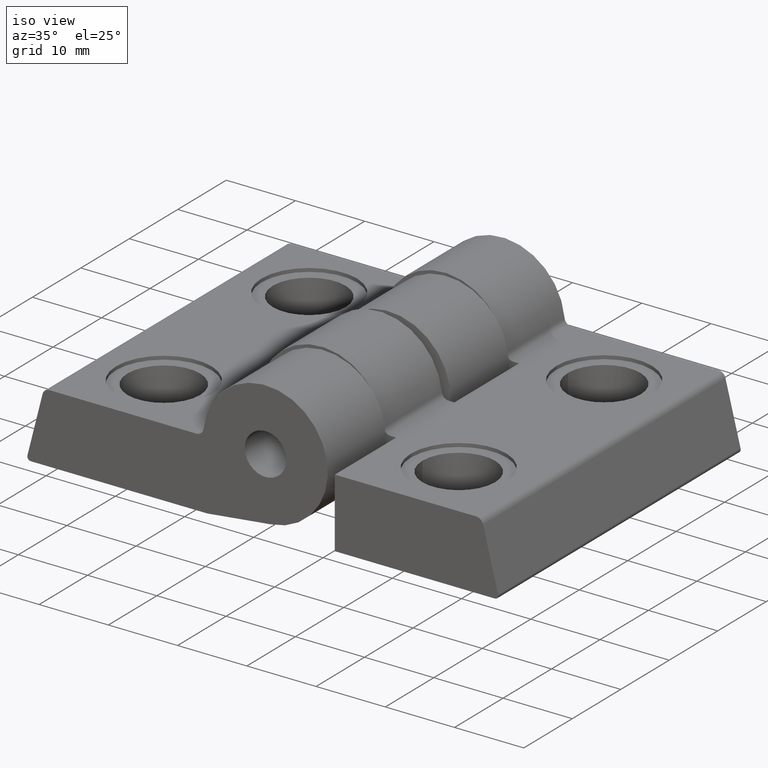
[diagram: clean part render]
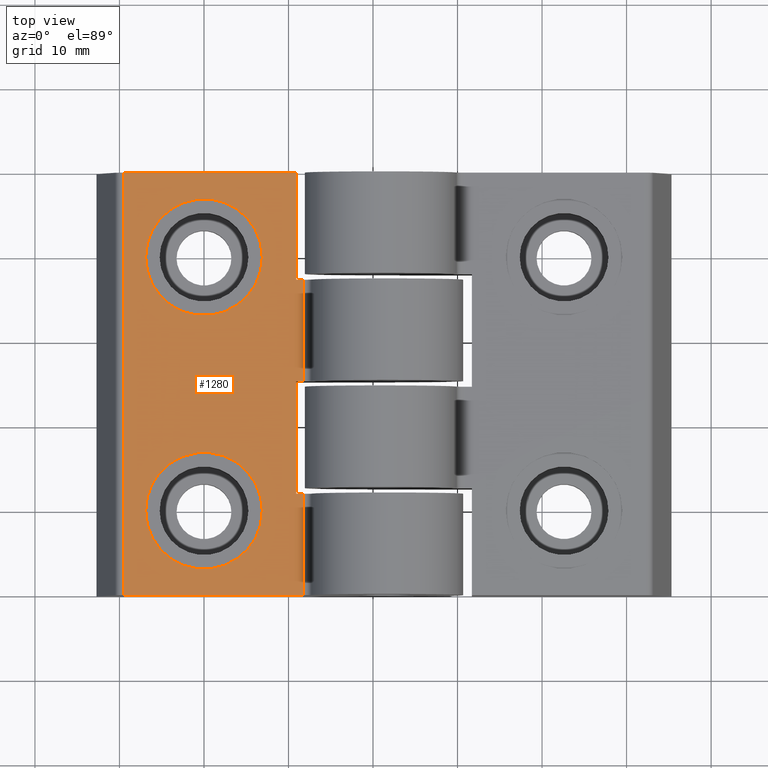
[diagram: tour spotlight — one face highlighted and labeled with its STEP entity id]
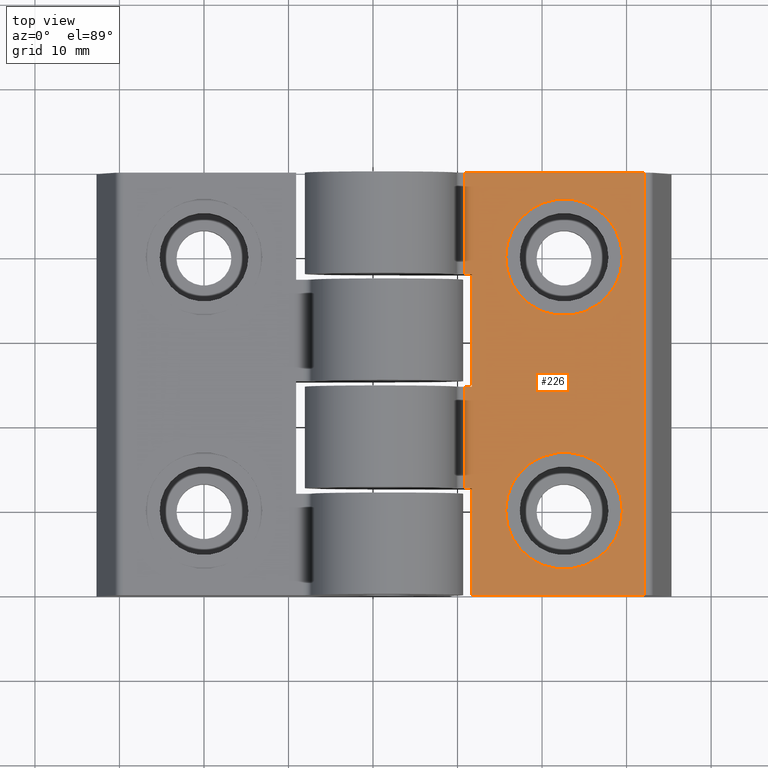
[diagram: tour spotlight — one face highlighted and labeled with its STEP entity id]
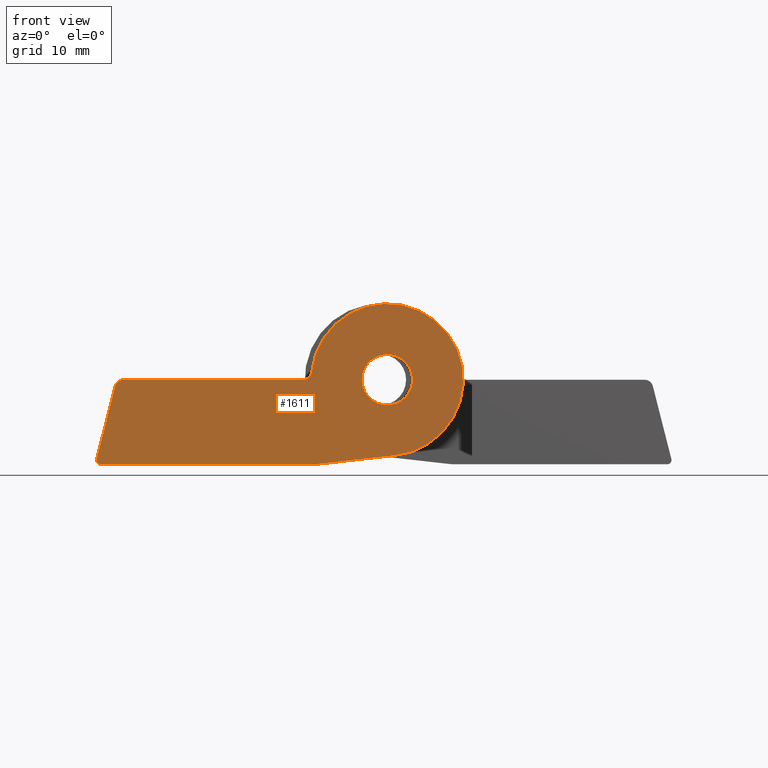
[diagram: tour spotlight — one face highlighted and labeled with its STEP entity id]
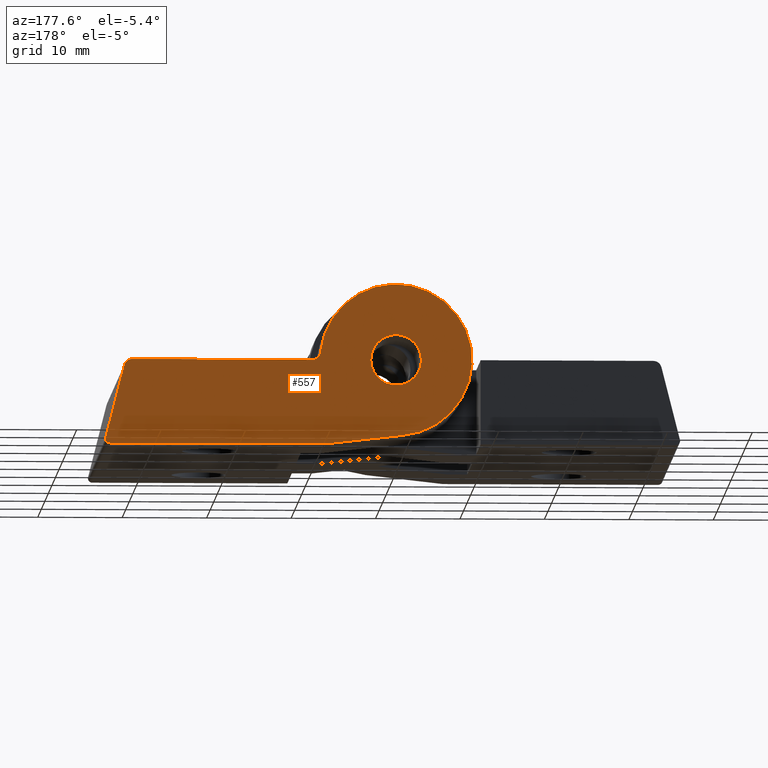
[diagram: tour spotlight — one face highlighted and labeled with its STEP entity id]
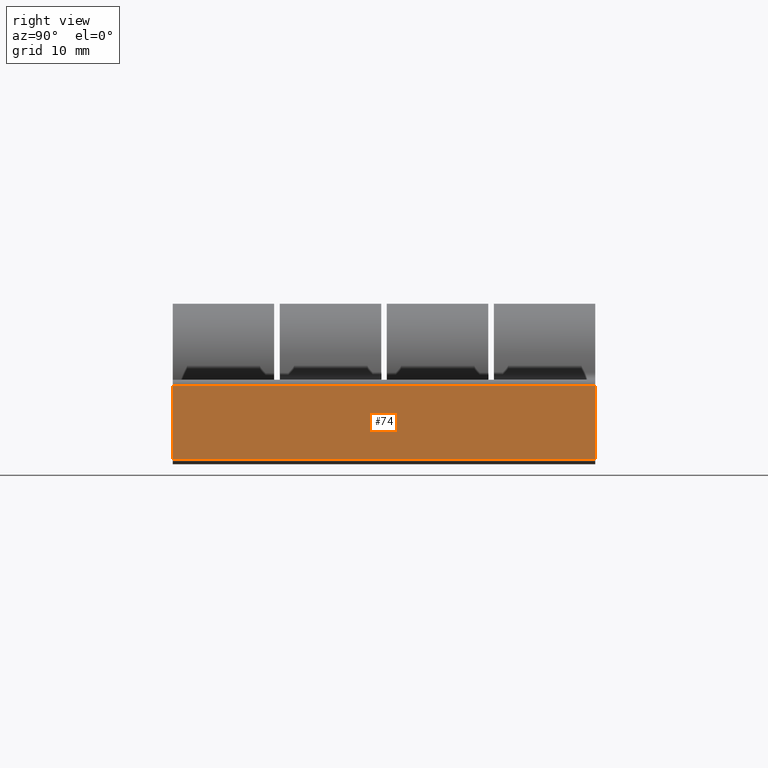
[diagram: tour spotlight — one face highlighted and labeled with its STEP entity id]
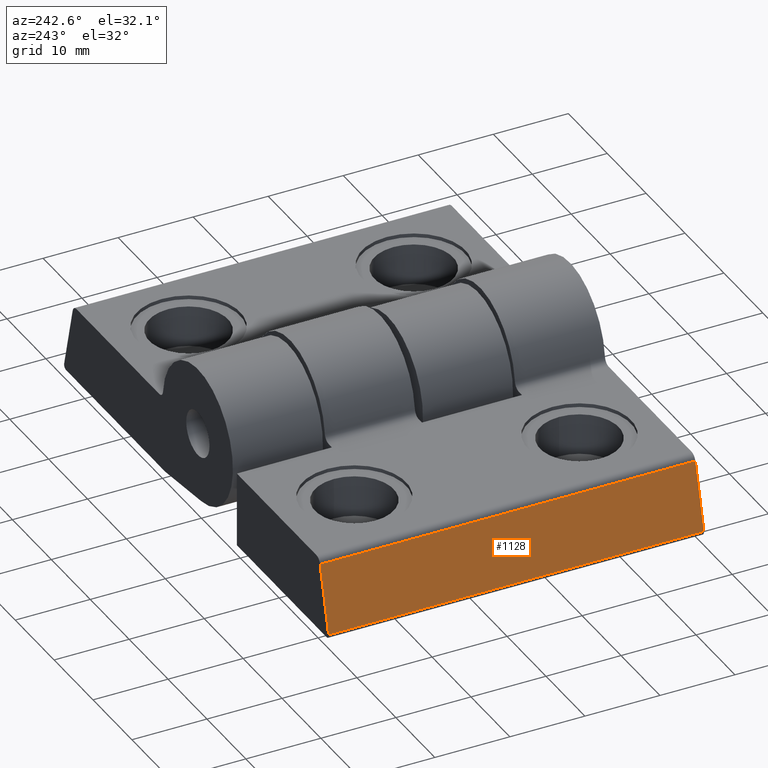
[diagram: tour spotlight — one face highlighted and labeled with its STEP entity id]
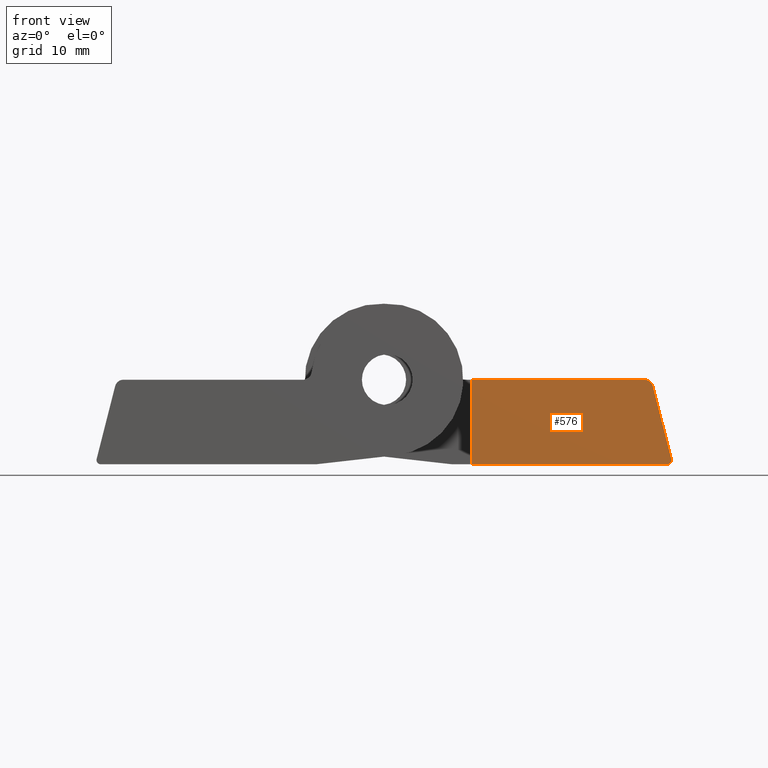
[diagram: tour spotlight — one face highlighted and labeled with its STEP entity id]
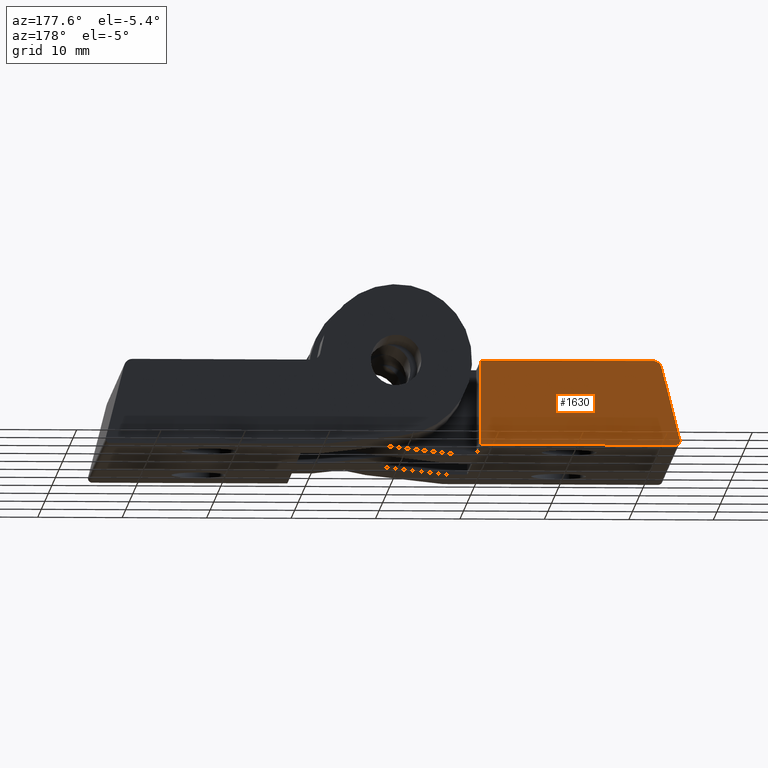
[diagram: tour spotlight — one face highlighted and labeled with its STEP entity id]
A machine part: a face-by-face anatomy tour. The part has 60 B-rep faces; the first image is the clean iso view, then the 8 largest visible faces are spotlighted one at a time (largest first), each with its STEP entity span.

Face 1 — top view, entity #1280. In plain terms, the highlighted planar face has unit normal (0, 0, 1).
Definition (entity closure, byte-faithful):
#1134=CARTESIAN_POINT('',(-9.539471402018450,-9.999997779959813,9.999997779960040));
#1135=VERTEX_POINT('',#1134);
#1143=CARTESIAN_POINT('',(-9.539471402018450,39.999991119840189,9.999997779960038));
#1144=VERTEX_POINT('',#1143);
#1145=CARTESIAN_POINT('',(-9.539471402018450,-9.999997779959813,9.999997779960040));
#1146=DIRECTION('',(0.0,1.0,0.0));
#1147=VECTOR('',#1146,49.999988899800002);
#1148=LINE('',#1145,#1147);
#1149=EDGE_CURVE('',#1135,#1144,#1148,.T.);
#1162=CARTESIAN_POINT('',(-9.539471402018450,-9.999997779959813,9.999997779960040));
#1163=DIRECTION('',(0.0,0.0,1.0));
#1164=DIRECTION('',(1.0,0.0,0.0));
#1165=AXIS2_PLACEMENT_3D('',#1162,#1163,#1164);
#1166=PLANE('',#1165);
#1167=CARTESIAN_POINT('',(11.733019789082107,-9.999997779959813,9.999997779961149));
#1168=VERTEX_POINT('',#1167);
#1169=CARTESIAN_POINT('',(-9.539471402018450,-9.999997779959811,9.999997779960040));
#1170=DIRECTION('',(1.0,0.0,0.0));
#1171=VECTOR('',#1170,21.272491191100556);
#1172=LINE('',#1169,#1171);
#1173=EDGE_CURVE('',#1135,#1168,#1172,.T.);
#1174=ORIENTED_EDGE('',*,*,#1173,.T.);
#1175=CARTESIAN_POINT('',(11.733019789082107,1.999999555991963,9.999997779961149));
#1176=VERTEX_POINT('',#1175);
#1177=CARTESIAN_POINT('',(11.733019789082107,-9.999997779959813,9.999997779961149));
#1178=DIRECTION('',(0.0,1.0,0.0));
#1179=VECTOR('',#1178,11.999997335951775);
#1180=LINE('',#1177,#1179);
#1181=EDGE_CURVE('',#1168,#1176,#1180,.T.);
#1182=ORIENTED_EDGE('',*,*,#1181,.T.);
#1183=CARTESIAN_POINT('',(10.899996943358786,1.999999555991963,9.999997779960040));
#1184=VERTEX_POINT('',#1183);
#1185=CARTESIAN_POINT('',(11.733019789082107,1.999999555991963,9.999997779961149));
#1186=DIRECTION('',(-1.0,0.0,-1.330632E-012));
#1187=VECTOR('',#1186,0.833022845723320);
#1188=LINE('',#1185,#1187);
#1189=EDGE_CURVE('',#1176,#1184,#1188,.T.);
#1190=ORIENTED_EDGE('',*,*,#1189,.T.);
#1191=CARTESIAN_POINT('',(10.899996943358786,15.331985886236993,9.999997779960038));
#1192=VERTEX_POINT('',#1191);
#1193=CARTESIAN_POINT('',(10.899996943358786,15.331985886236993,9.999997779960038));
#1194=DIRECTION('',(0.0,-1.0,0.0));
#1195=VECTOR('',#1194,13.331986330245030);
#1196=LINE('',#1193,#1195);
#1197=EDGE_CURVE('',#1192,#1184,#1196,.T.);
#1198=ORIENTED_EDGE('',*,*,#1197,.F.);
#1199=CARTESIAN_POINT('',(11.733019789082107,15.331985886236993,9.999997779961147));
#1200=VERTEX_POINT('',#1199);
#1201=CARTESIAN_POINT('',(11.733019789082107,15.331985886236993,9.999997779961147));
#1202=DIRECTION('',(-1.0,0.0,-1.330632E-012));
#1203=VECTOR('',#1202,0.833022845723320);
#1204=LINE('',#1201,#1203);
#1205=EDGE_CURVE('',#1200,#1192,#1204,.T.);
#1206=ORIENTED_EDGE('',*,*,#1205,.F.);
#1207=CARTESIAN_POINT('',(11.733019789082107,27.331983222189216,9.999997779961147));
#1208=VERTEX_POINT('',#1207);
#1209=CARTESIAN_POINT('',(11.733019789082110,15.331985886236993,9.999997779961147));
#1210=DIRECTION('',(0.0,1.0,0.0));
#1211=VECTOR('',#1210,11.999997335952223);
#1212=LINE('',#1209,#1211);
#1213=EDGE_CURVE('',#1200,#1208,#1212,.T.);
#1214=ORIENTED_EDGE('',*,*,#1213,.T.);
#1215=CARTESIAN_POINT('',(10.899993133359715,27.331983222189216,9.999997779960038));
#1216=VERTEX_POINT('',#1215);
#1217=CARTESIAN_POINT('',(11.733019789082107,27.331983222189216,9.999997779961147));
#1218=DIRECTION('',(-1.0,0.0,-1.330626E-012));
#1219=VECTOR('',#1218,0.833026655722392);
#1220=LINE('',#1217,#1219);
#1221=EDGE_CURVE('',#1208,#1216,#1220,.T.);
#1222=ORIENTED_EDGE('',*,*,#1221,.T.);
#1223=CARTESIAN_POINT('',(10.899993133359715,39.999991119840189,9.999997779960038));
#1224=VERTEX_POINT('',#1223);
#1225=CARTESIAN_POINT('',(10.899993133359715,39.999991119840189,9.999997779960038));
#1226=DIRECTION('',(0.0,-1.0,0.0));
#1227=VECTOR('',#1226,12.668007897650973);
#1228=LINE('',#1225,#1227);
#1229=EDGE_CURVE('',#1224,#1216,#1228,.T.);
#1230=ORIENTED_EDGE('',*,*,#1229,.F.);
#1231=CARTESIAN_POINT('',(-9.539471402018450,39.999991119840189,9.999997779960038));
#1232=DIRECTION('',(1.0,0.0,0.0));
#1233=VECTOR('',#1232,20.439464535378164);
#1234=LINE('',#1231,#1233);
#1235=EDGE_CURVE('',#1144,#1224,#1234,.T.);
#1236=ORIENTED_EDGE('',*,*,#1235,.F.);
#1237=ORIENTED_EDGE('',*,*,#1149,.F.);
#1238=EDGE_LOOP('',(#1174,#1182,#1190,#1198,#1206,#1214,#1222,#1230,#1236,#1237));
#1239=FACE_OUTER_BOUND('',#1238,.T.);
#1240=CARTESIAN_POINT('',(-6.900000719706867,29.999985709881912,9.999997779960038));
#1241=VERTEX_POINT('',#1240);
#1242=CARTESIAN_POINT('',(6.900000719706867,29.999985709881912,9.999997779960038));
#1243=VERTEX_POINT('',#1242);
#1244=CARTESIAN_POINT('',(0.0,29.999985709881912,9.999997779960038));
#1245=DIRECTION('',(0.0,6.123234E-017,1.0));
#1246=DIRECTION('',(1.0,-1.224647E-016,7.498799E-033));
#1247=AXIS2_PLACEMENT_3D('',#1244,#1245,#1246);
#1248=CIRCLE('',#1247,6.900000719706867);
#1249=EDGE_CURVE('',#1241,#1243,#1248,.T.);
#1250=ORIENTED_EDGE('',*,*,#1249,.F.);
#1251=CARTESIAN_POINT('',(0.0,29.999985709881912,9.999997779960038));
#1252=DIRECTION('',(0.0,6.123234E-017,1.0));
#1253=DIRECTION('',(1.0,-1.224647E-016,7.498799E-033));
#1254=AXIS2_PLACEMENT_3D('',#1251,#1252,#1253);
#1255=CIRCLE('',#1254,6.900000719706867);
#1256=EDGE_CURVE('',#1243,#1241,#1255,.T.);
#1257=ORIENTED_EDGE('',*,*,#1256,.F.);
#1258=EDGE_LOOP('',(#1250,#1257));
#1259=FACE_BOUND('',#1258,.T.);
#1260=CARTESIAN_POINT('',(-6.900000719706867,1.457330E-015,9.999997779960040));
#1261=VERTEX_POINT('',#1260);
#1262=CARTESIAN_POINT('',(6.900000719706867,6.123233E-016,9.999997779960040));
#1263=VERTEX_POINT('',#1262);
#1264=CARTESIAN_POINT('',(0.0,6.123233E-016,9.999997779960040));
#1265=DIRECTION('',(0.0,6.123234E-017,1.0));
#1266=DIRECTION('',(1.0,-1.224647E-016,7.498799E-033));
#1267=AXIS2_PLACEMENT_3D('',#1264,#1265,#1266);
#1268=CIRCLE('',#1267,6.900000719706867);
#1269=EDGE_CURVE('',#1261,#1263,#1268,.T.);
#1270=ORIENTED_EDGE('',*,*,#1269,.F.);
#1271=CARTESIAN_POINT('',(0.0,6.123233E-016,9.999997779960040));
#1272=DIRECTION('',(0.0,6.123234E-017,1.0));
#1273=DIRECTION('',(1.0,-1.224647E-016,7.498799E-033));
#1274=AXIS2_PLACEMENT_3D('',#1271,#1272,#1273);
#1275=CIRCLE('',#1274,6.900000719706867);
#1276=EDGE_CURVE('',#1263,#1261,#1275,.T.);
#1277=ORIENTED_EDGE('',*,*,#1276,.F.);
#1278=EDGE_LOOP('',(#1270,#1277));
#1279=FACE_BOUND('',#1278,.T.);
#1280=ADVANCED_FACE('',(#1239,#1259,#1279),#1166,.T.);

Face 2 — top view, entity #226. In plain terms, the highlighted planar face has unit normal (0, 0, 1).
Definition (entity closure, byte-faithful):
#80=CARTESIAN_POINT('',(52.139459464648468,39.999994929838977,9.999997779960038));
#81=VERTEX_POINT('',#80);
#89=CARTESIAN_POINT('',(52.139459464648468,-9.999993969961025,9.999997779960040));
#90=VERTEX_POINT('',#89);
#91=CARTESIAN_POINT('',(52.139459464648468,39.999994929838977,9.999997779960038));
#92=DIRECTION('',(0.0,-1.0,0.0));
#93=VECTOR('',#92,49.999988899800002);
#94=LINE('',#91,#93);
#95=EDGE_CURVE('',#81,#90,#94,.T.);
#108=CARTESIAN_POINT('',(52.139459464648468,39.999994929838977,9.999997779960038));
#109=DIRECTION('',(0.0,0.0,1.0));
#110=DIRECTION('',(-1.0,0.0,0.0));
#111=AXIS2_PLACEMENT_3D('',#108,#109,#110);
#112=PLANE('',#111);
#113=CARTESIAN_POINT('',(30.866968273547911,39.999994929838977,9.999997779961147));
#114=VERTEX_POINT('',#113);
#115=CARTESIAN_POINT('',(52.139459464648468,39.999994929838977,9.999997779960038));
#116=DIRECTION('',(-1.0,0.0,0.0));
#117=VECTOR('',#116,21.272491191100556);
#118=LINE('',#115,#117);
#119=EDGE_CURVE('',#81,#114,#118,.T.);
#120=ORIENTED_EDGE('',*,*,#119,.T.);
#121=CARTESIAN_POINT('',(30.866968273547911,27.999997593887201,9.999997779961147));
#122=VERTEX_POINT('',#121);
#123=CARTESIAN_POINT('',(30.866968273547911,39.999994929838977,9.999997779961147));
#124=DIRECTION('',(0.0,-1.0,0.0));
#125=VECTOR('',#124,11.999997335951775);
#126=LINE('',#123,#125);
#127=EDGE_CURVE('',#114,#122,#126,.T.);
#128=ORIENTED_EDGE('',*,*,#127,.T.);
#129=CARTESIAN_POINT('',(31.699991119271232,27.999997593887201,9.999997779960038));
#130=VERTEX_POINT('',#129);
#131=CARTESIAN_POINT('',(30.866968273547911,27.999997593887201,9.999997779961147));
#132=DIRECTION('',(1.0,0.0,-1.330632E-012));
#133=VECTOR('',#132,0.833022845723320);
#134=LINE('',#131,#133);
#135=EDGE_CURVE('',#122,#130,#134,.T.);
#136=ORIENTED_EDGE('',*,*,#135,.T.);
#137=CARTESIAN_POINT('',(31.699991119271232,14.668011263642171,9.999997779960038));
#138=VERTEX_POINT('',#137);
#139=CARTESIAN_POINT('',(31.699991119271232,14.668011263642171,9.999997779960038));
#140=DIRECTION('',(0.0,1.0,0.0));
#141=VECTOR('',#140,13.331986330245030);
#142=LINE('',#139,#141);
#143=EDGE_CURVE('',#138,#130,#142,.T.);
#144=ORIENTED_EDGE('',*,*,#143,.F.);
#145=CARTESIAN_POINT('',(30.866968273547911,14.668011263642171,9.999997779961147));
#146=VERTEX_POINT('',#145);
#147=CARTESIAN_POINT('',(30.866968273547911,14.668011263642171,9.999997779961147));
#148=DIRECTION('',(1.0,0.0,-1.330632E-012));
#149=VECTOR('',#148,0.833022845723320);
#150=LINE('',#147,#149);
#151=EDGE_CURVE('',#146,#138,#150,.T.);
#152=ORIENTED_EDGE('',*,*,#151,.F.);
#153=CARTESIAN_POINT('',(30.866968273547911,2.668013927689949,9.999997779961149));
#154=VERTEX_POINT('',#153);
#155=CARTESIAN_POINT('',(30.866968273547911,14.668011263642171,9.999997779961149));
#156=DIRECTION('',(0.0,-1.0,0.0));
#157=VECTOR('',#156,11.999997335952223);
#158=LINE('',#155,#157);
#159=EDGE_CURVE('',#146,#154,#158,.T.);
#160=ORIENTED_EDGE('',*,*,#159,.T.);
#161=CARTESIAN_POINT('',(31.699994929270304,2.668013927689949,9.999997779960040));
#162=VERTEX_POINT('',#161);
#163=CARTESIAN_POINT('',(30.866968273547911,2.668013927689949,9.999997779961149));
#164=DIRECTION('',(1.0,0.0,-1.330626E-012));
#165=VECTOR('',#164,0.833026655722392);
#166=LINE('',#163,#165);
#167=EDGE_CURVE('',#154,#162,#166,.T.);
#168=ORIENTED_EDGE('',*,*,#167,.T.);
#169=CARTESIAN_POINT('',(31.699994929270304,-9.999993969961025,9.999997779960040));
#170=VERTEX_POINT('',#169);
#171=CARTESIAN_POINT('',(31.699994929270304,-9.999993969961025,9.999997779960040));
#172=DIRECTION('',(0.0,1.0,0.0));
#173=VECTOR('',#172,12.668007897650973);
#174=LINE('',#171,#173);
#175=EDGE_CURVE('',#170,#162,#174,.T.);
#176=ORIENTED_EDGE('',*,*,#175,.F.);
#177=CARTESIAN_POINT('',(52.139459464648468,-9.999993969961025,9.999997779960040));
#178=DIRECTION('',(-1.0,0.0,0.0));
#179=VECTOR('',#178,20.439464535378164);
#180=LINE('',#177,#179);
#181=EDGE_CURVE('',#90,#170,#180,.T.);
#182=ORIENTED_EDGE('',*,*,#181,.F.);
#183=ORIENTED_EDGE('',*,*,#95,.F.);
#184=EDGE_LOOP('',(#120,#128,#136,#144,#152,#160,#168,#176,#182,#183));
#185=FACE_OUTER_BOUND('',#184,.T.);
#186=CARTESIAN_POINT('',(49.499988782336885,0.000011439997252,9.999997779960040));
#187=VERTEX_POINT('',#186);
#188=CARTESIAN_POINT('',(35.699987342923151,0.000011439997252,9.999997779960040));
#189=VERTEX_POINT('',#188);
#190=CARTESIAN_POINT('',(42.599988062630018,0.000011439997252,9.999997779960040));
#191=DIRECTION('',(0.0,6.123234E-017,1.0));
#192=DIRECTION('',(-1.0,0.0,0.0));
#193=AXIS2_PLACEMENT_3D('',#190,#191,#192);
#194=CIRCLE('',#193,6.900000719706867);
#195=EDGE_CURVE('',#187,#189,#194,.T.);
#196=ORIENTED_EDGE('',*,*,#195,.F.);
#197=CARTESIAN_POINT('',(42.599988062630018,0.000011439997252,9.999997779960040));
#198=DIRECTION('',(0.0,6.123234E-017,1.0));
#199=DIRECTION('',(-1.0,0.0,0.0));
#200=AXIS2_PLACEMENT_3D('',#197,#198,#199);
#201=CIRCLE('',#200,6.900000719706867);
#202=EDGE_CURVE('',#189,#187,#201,.T.);
#203=ORIENTED_EDGE('',*,*,#202,.F.);
#204=EDGE_LOOP('',(#196,#203));
#205=FACE_BOUND('',#204,.T.);
#206=CARTESIAN_POINT('',(49.499988782336885,29.999997149879164,9.999997779960038));
#207=VERTEX_POINT('',#206);
#208=CARTESIAN_POINT('',(35.699987342923151,29.999997149879164,9.999997779960038));
#209=VERTEX_POINT('',#208);
#210=CARTESIAN_POINT('',(42.599988062630018,29.999997149879164,9.999997779960038));
#211=DIRECTION('',(0.0,6.123234E-017,1.0));
#212=DIRECTION('',(-1.0,0.0,0.0));
#213=AXIS2_PLACEMENT_3D('',#210,#211,#212);
#214=CIRCLE('',#213,6.900000719706867);
#215=EDGE_CURVE('',#207,#209,#214,.T.);
#216=ORIENTED_EDGE('',*,*,#215,.F.);
#217=CARTESIAN_POINT('',(42.599988062630018,29.999997149879164,9.999997779960038));
#218=DIRECTION('',(0.0,6.123234E-017,1.0));
#219=DIRECTION('',(-1.0,0.0,0.0));
#220=AXIS2_PLACEMENT_3D('',#217,#218,#219);
#221=CIRCLE('',#220,6.900000719706867);
#222=EDGE_CURVE('',#209,#207,#221,.T.);
#223=ORIENTED_EDGE('',*,*,#222,.F.);
#224=EDGE_LOOP('',(#216,#223));
#225=FACE_BOUND('',#224,.T.);
#226=ADVANCED_FACE('',(#185,#205,#225),#112,.T.);

Face 3 — front view, entity #1611. In plain terms, the highlighted planar face has unit normal (0, 1, 0).
Definition (entity closure, byte-faithful):
#1061=CARTESIAN_POINT('',(-12.215784981284827,-9.999997779959813,6.123233E-016));
#1062=VERTEX_POINT('',#1061);
#1063=CARTESIAN_POINT('',(-12.700377417766589,-9.999997779959813,0.623167246070836));
#1064=VERTEX_POINT('',#1063);
#1065=CARTESIAN_POINT('',(-12.215784981284829,-9.999997779959816,0.500000000000000));
#1066=DIRECTION('',(1.224647E-016,1.000000000000000,-6.123234E-017));
#1067=DIRECTION('',(-0.969184872963516,1.337746E-016,0.246334492141669));
#1068=AXIS2_PLACEMENT_3D('',#1065,#1066,#1067);
#1069=CIRCLE('',#1068,0.500000000000000);
#1070=EDGE_CURVE('',#1062,#1064,#1069,.T.);
#1103=CARTESIAN_POINT('',(-10.508656274981973,-9.999997779959813,9.246332272101711));
#1104=VERTEX_POINT('',#1103);
#1105=CARTESIAN_POINT('',(-12.700377417766584,-9.999997779959813,0.623167246070837));
#1106=DIRECTION('',(0.246334492141673,0.0,0.969184872963515));
#1107=VECTOR('',#1106,8.897337614921174);
#1108=LINE('',#1105,#1107);
#1109=EDGE_CURVE('',#1064,#1104,#1108,.T.);
#1134=CARTESIAN_POINT('',(-9.539471402018450,-9.999997779959813,9.999997779960040));
#1135=VERTEX_POINT('',#1134);
#1136=CARTESIAN_POINT('',(-9.539471402018451,-9.999997779959816,8.999997779960040));
#1137=DIRECTION('',(1.224647E-016,1.000000000000000,-6.123234E-017));
#1138=DIRECTION('',(-0.969184872963516,1.337746E-016,0.246334492141669));
#1139=AXIS2_PLACEMENT_3D('',#1136,#1137,#1138);
#1140=CIRCLE('',#1139,1.0);
#1141=EDGE_CURVE('',#1104,#1135,#1140,.T.);
#1167=CARTESIAN_POINT('',(11.733019789082107,-9.999997779959813,9.999997779961149));
#1168=VERTEX_POINT('',#1167);
#1169=CARTESIAN_POINT('',(-9.539471402018450,-9.999997779959811,9.999997779960040));
#1170=DIRECTION('',(1.0,0.0,0.0));
#1171=VECTOR('',#1170,21.272491191100556);
#1172=LINE('',#1169,#1171);
#1173=EDGE_CURVE('',#1135,#1168,#1172,.T.);
#1286=CARTESIAN_POINT('',(12.728006982865679,-9.999997779959813,10.899997909476070));
#1287=VERTEX_POINT('',#1286);
#1288=CARTESIAN_POINT('',(11.733019789082109,-9.999997779959811,10.999997496566948));
#1289=DIRECTION('',(-1.224647E-016,-1.0,6.123234E-017));
#1290=DIRECTION('',(0.994987475757265,-1.279740E-016,-0.099999615430190));
#1291=AXIS2_PLACEMENT_3D('',#1288,#1289,#1290);
#1292=CIRCLE('',#1291,0.999999716605787);
#1293=EDGE_CURVE('',#1168,#1287,#1292,.T.);
#1352=CARTESIAN_POINT('',(22.408279035607819,-9.999997779959813,1.029273055670985));
#1353=VERTEX_POINT('',#1352);
#1354=CARTESIAN_POINT('',(21.682901271888966,-9.999997779959813,10.000000666356073));
#1355=DIRECTION('',(1.224647E-016,1.0,-6.123234E-017));
#1356=DIRECTION('',(-0.994987475757264,1.279740E-016,0.099999615430204));
#1357=AXIS2_PLACEMENT_3D('',#1354,#1355,#1356);
#1358=CIRCLE('',#1357,9.000007042508656);
#1359=EDGE_CURVE('',#1287,#1353,#1358,.T.);
#1418=CARTESIAN_POINT('',(13.282896659345568,-9.999997779959813,6.123233E-016));
#1419=VERTEX_POINT('',#1418);
#1420=CARTESIAN_POINT('',(22.408279035607819,-9.999997779959815,1.029273055670994));
#1421=DIRECTION('',(-0.993699004315188,1.934345E-016,-0.112081616793317));
#1422=VECTOR('',#1421,9.183245969488567);
#1423=LINE('',#1420,#1422);
#1424=EDGE_CURVE('',#1353,#1419,#1423,.T.);
#1527=CARTESIAN_POINT('',(13.282896659345568,-9.999997779959816,6.123233E-016));
#1528=DIRECTION('',(-1.0,0.0,0.0));
#1529=VECTOR('',#1528,25.498681640630394);
#1530=LINE('',#1527,#1529);
#1531=EDGE_CURVE('',#1419,#1062,#1530,.T.);
#1576=CARTESIAN_POINT('',(35.022782368820089,-9.999997779959813,-1.900005495813900));
#1577=DIRECTION('',(0.0,1.0,0.0));
#1578=DIRECTION('',(-1.0,0.0,0.0));
#1579=AXIS2_PLACEMENT_3D('',#1576,#1577,#1578);
#1580=PLANE('',#1579);
#1581=ORIENTED_EDGE('',*,*,#1531,.F.);
#1582=ORIENTED_EDGE('',*,*,#1424,.F.);
#1583=ORIENTED_EDGE('',*,*,#1359,.F.);
#1584=ORIENTED_EDGE('',*,*,#1293,.F.);
#1585=ORIENTED_EDGE('',*,*,#1173,.F.);
#1586=ORIENTED_EDGE('',*,*,#1141,.F.);
#1587=ORIENTED_EDGE('',*,*,#1109,.F.);
#1588=ORIENTED_EDGE('',*,*,#1070,.F.);
#1589=EDGE_LOOP('',(#1581,#1582,#1583,#1584,#1585,#1586,#1587,#1588));
#1590=FACE_OUTER_BOUND('',#1589,.T.);
#1591=CARTESIAN_POINT('',(18.682908795274216,-9.999997779959813,10.000000666356073));
#1592=VERTEX_POINT('',#1591);
#1593=CARTESIAN_POINT('',(24.682893748503716,-9.999997779959813,10.000000666356073));
#1594=VERTEX_POINT('',#1593);
#1595=CARTESIAN_POINT('',(21.682901271888966,-9.999997779959813,10.000000666356073));
#1596=DIRECTION('',(-1.224647E-016,-1.0,6.123234E-017));
#1597=DIRECTION('',(1.0,-1.224647E-016,7.498799E-033));
#1598=AXIS2_PLACEMENT_3D('',#1595,#1596,#1597);
#1599=CIRCLE('',#1598,2.999992476614749);
#1600=EDGE_CURVE('',#1592,#1594,#1599,.T.);
#1601=ORIENTED_EDGE('',*,*,#1600,.F.);
#1602=CARTESIAN_POINT('',(21.682901271888966,-9.999997779959813,10.000000666356073));
#1603=DIRECTION('',(-1.224647E-016,-1.0,6.123234E-017));
#1604=DIRECTION('',(1.0,-1.224647E-016,7.498799E-033));
#1605=AXIS2_PLACEMENT_3D('',#1602,#1603,#1604);
#1606=CIRCLE('',#1605,2.999992476614749);
#1607=EDGE_CURVE('',#1594,#1592,#1606,.T.);
#1608=ORIENTED_EDGE('',*,*,#1607,.F.);
#1609=EDGE_LOOP('',(#1601,#1608));
#1610=FACE_BOUND('',#1609,.T.);
#1611=ADVANCED_FACE('',(#1590,#1610),#1580,.F.);

Face 4 — auxiliary view, entity #557. In plain terms, the highlighted planar face has unit normal (0, -1, 0).
Definition (entity closure, byte-faithful):
#7=CARTESIAN_POINT('',(54.815773043914845,39.999994929838977,-2.449293E-015));
#8=VERTEX_POINT('',#7);
#9=CARTESIAN_POINT('',(55.300365480396607,39.999994929838977,0.623167246070833));
#10=VERTEX_POINT('',#9);
#11=CARTESIAN_POINT('',(54.815773043914852,39.999994929838991,0.499999999999996));
#12=DIRECTION('',(0.0,-1.000000000000000,6.123234E-017));
#13=DIRECTION('',(0.969184872963516,1.508364E-017,0.246334492141669));
#14=AXIS2_PLACEMENT_3D('',#11,#12,#13);
#15=CIRCLE('',#14,0.500000000000000);
#16=EDGE_CURVE('',#8,#10,#15,.T.);
#49=CARTESIAN_POINT('',(53.108644337611992,39.999994929838977,9.246332272101709));
#50=VERTEX_POINT('',#49);
#51=CARTESIAN_POINT('',(55.300365480396600,39.999994929838977,0.623167246070834));
#52=DIRECTION('',(-0.246334492141673,0.0,0.969184872963515));
#53=VECTOR('',#52,8.897337614921176);
#54=LINE('',#51,#53);
#55=EDGE_CURVE('',#10,#50,#54,.T.);
#80=CARTESIAN_POINT('',(52.139459464648468,39.999994929838977,9.999997779960038));
#81=VERTEX_POINT('',#80);
#82=CARTESIAN_POINT('',(52.139459464648475,39.999994929838991,8.999997779960038));
#83=DIRECTION('',(0.0,-1.000000000000000,6.123234E-017));
#84=DIRECTION('',(0.969184872963516,1.508364E-017,0.246334492141669));
#85=AXIS2_PLACEMENT_3D('',#82,#83,#84);
#86=CIRCLE('',#85,1.0);
#87=EDGE_CURVE('',#50,#81,#86,.T.);
#113=CARTESIAN_POINT('',(30.866968273547911,39.999994929838977,9.999997779961147));
#114=VERTEX_POINT('',#113);
#115=CARTESIAN_POINT('',(52.139459464648468,39.999994929838977,9.999997779960038));
#116=DIRECTION('',(-1.0,0.0,0.0));
#117=VECTOR('',#116,21.272491191100556);
#118=LINE('',#115,#117);
#119=EDGE_CURVE('',#81,#114,#118,.T.);
#232=CARTESIAN_POINT('',(29.871981079764339,39.999994929838977,10.899997909476069));
#233=VERTEX_POINT('',#232);
#234=CARTESIAN_POINT('',(30.866968273547915,39.999994929838977,10.999997496566946));
#235=DIRECTION('',(7.703720E-034,1.0,-6.123234E-017));
#236=DIRECTION('',(-0.994987475757265,-6.123210E-018,-0.099999615430190));
#237=AXIS2_PLACEMENT_3D('',#234,#235,#236);
#238=CIRCLE('',#237,0.999999716605787);
#239=EDGE_CURVE('',#114,#233,#238,.T.);
#298=CARTESIAN_POINT('',(20.191709027022199,39.999994929838977,1.029273055670982));
#299=VERTEX_POINT('',#298);
#300=CARTESIAN_POINT('',(20.917086790741052,39.999994929838977,10.000000666356073));
#301=DIRECTION('',(7.703720E-034,-1.0,6.123234E-017));
#302=DIRECTION('',(0.994987475757264,6.123210E-018,0.099999615430204));
#303=AXIS2_PLACEMENT_3D('',#300,#301,#302);
#304=CIRCLE('',#303,9.000007042508656);
#305=EDGE_CURVE('',#233,#299,#304,.T.);
#364=CARTESIAN_POINT('',(29.317091403284451,39.999994929838977,-2.449293E-015));
#365=VERTEX_POINT('',#364);
#366=CARTESIAN_POINT('',(20.191709027022199,39.999994929838977,1.029273055670991));
#367=DIRECTION('',(0.993699004315188,0.0,-0.112081616793317));
#368=VECTOR('',#367,9.183245969488567);
#369=LINE('',#366,#368);
#370=EDGE_CURVE('',#299,#365,#369,.T.);
#473=CARTESIAN_POINT('',(29.317091403284451,39.999994929838977,-2.449293E-015));
#474=DIRECTION('',(1.0,0.0,0.0));
#475=VECTOR('',#474,25.498681640630394);
#476=LINE('',#473,#475);
#477=EDGE_CURVE('',#365,#8,#476,.T.);
#522=CARTESIAN_POINT('',(7.577205693809930,39.999994929838977,-1.900005495813903));
#523=DIRECTION('',(0.0,-1.0,0.0));
#524=DIRECTION('',(1.0,0.0,0.0));
#525=AXIS2_PLACEMENT_3D('',#522,#523,#524);
#526=PLANE('',#525);
#527=ORIENTED_EDGE('',*,*,#477,.F.);
#528=ORIENTED_EDGE('',*,*,#370,.F.);
#529=ORIENTED_EDGE('',*,*,#305,.F.);
#530=ORIENTED_EDGE('',*,*,#239,.F.);
#531=ORIENTED_EDGE('',*,*,#119,.F.);
#532=ORIENTED_EDGE('',*,*,#87,.F.);
#533=ORIENTED_EDGE('',*,*,#55,.F.);
#534=ORIENTED_EDGE('',*,*,#16,.F.);
#535=EDGE_LOOP('',(#527,#528,#529,#530,#531,#532,#533,#534));
#536=FACE_OUTER_BOUND('',#535,.T.);
#537=CARTESIAN_POINT('',(23.917079267355803,39.999994929838977,10.000000666356071));
#538=VERTEX_POINT('',#537);
#539=CARTESIAN_POINT('',(17.917094314126302,39.999994929838977,10.000000666356071));
#540=VERTEX_POINT('',#539);
#541=CARTESIAN_POINT('',(20.917086790741052,39.999994929838977,10.000000666356071));
#542=DIRECTION('',(0.0,1.0,-6.123234E-017));
#543=DIRECTION('',(-1.0,0.0,0.0));
#544=AXIS2_PLACEMENT_3D('',#541,#542,#543);
#545=CIRCLE('',#544,2.999992476614749);
#546=EDGE_CURVE('',#538,#540,#545,.T.);
#547=ORIENTED_EDGE('',*,*,#546,.F.);
#548=CARTESIAN_POINT('',(20.917086790741052,39.999994929838977,10.000000666356071));
#549=DIRECTION('',(0.0,1.0,-6.123234E-017));
#550=DIRECTION('',(-1.0,0.0,0.0));
#551=AXIS2_PLACEMENT_3D('',#548,#549,#550);
#552=CIRCLE('',#551,2.999992476614749);
#553=EDGE_CURVE('',#540,#538,#552,.T.);
#554=ORIENTED_EDGE('',*,*,#553,.F.);
#555=EDGE_LOOP('',(#547,#554));
#556=FACE_BOUND('',#555,.T.);
#557=ADVANCED_FACE('',(#536,#556),#526,.F.);

Face 5 — right view, entity #74. In plain terms, the highlighted planar face has unit normal (0.9692, 0, 0.2463).
Definition (entity closure, byte-faithful):
#9=CARTESIAN_POINT('',(55.300365480396607,39.999994929838977,0.623167246070833));
#10=VERTEX_POINT('',#9);
#18=CARTESIAN_POINT('',(55.300365480396607,-9.999993969961025,0.623167246070836));
#19=VERTEX_POINT('',#18);
#20=CARTESIAN_POINT('',(55.300365480396607,39.999994929838977,0.623167246070833));
#21=DIRECTION('',(0.0,-1.0,0.0));
#22=VECTOR('',#21,49.999988899800002);
#23=LINE('',#20,#22);
#24=EDGE_CURVE('',#10,#19,#23,.T.);
#44=CARTESIAN_POINT('',(55.300365480396607,39.999994929838977,0.623167246070833));
#45=DIRECTION('',(0.969184872963515,1.508364E-017,0.246334492141673));
#46=DIRECTION('',(-0.246334492141673,5.934546E-017,0.969184872963515));
#47=AXIS2_PLACEMENT_3D('',#44,#45,#46);
#48=PLANE('',#47);
#49=CARTESIAN_POINT('',(53.108644337611992,39.999994929838977,9.246332272101709));
#50=VERTEX_POINT('',#49);
#51=CARTESIAN_POINT('',(55.300365480396600,39.999994929838977,0.623167246070834));
#52=DIRECTION('',(-0.246334492141673,0.0,0.969184872963515));
#53=VECTOR('',#52,8.897337614921176);
#54=LINE('',#51,#53);
#55=EDGE_CURVE('',#10,#50,#54,.T.);
#56=ORIENTED_EDGE('',*,*,#55,.T.);
#57=CARTESIAN_POINT('',(53.108644337611992,-9.999993969961025,9.246332272101711));
#58=VERTEX_POINT('',#57);
#59=CARTESIAN_POINT('',(53.108644337611992,39.999994929838977,9.246332272101709));
#60=DIRECTION('',(0.0,-1.0,0.0));
#61=VECTOR('',#60,49.999988899800002);
#62=LINE('',#59,#61);
#63=EDGE_CURVE('',#50,#58,#62,.T.);
#64=ORIENTED_EDGE('',*,*,#63,.T.);
#65=CARTESIAN_POINT('',(55.300365480396600,-9.999993969961025,0.623167246070837));
#66=DIRECTION('',(-0.246334492141673,0.0,0.969184872963515));
#67=VECTOR('',#66,8.897337614921174);
#68=LINE('',#65,#67);
#69=EDGE_CURVE('',#19,#58,#68,.T.);
#70=ORIENTED_EDGE('',*,*,#69,.F.);
#71=ORIENTED_EDGE('',*,*,#24,.F.);
#72=EDGE_LOOP('',(#56,#64,#70,#71));
#73=FACE_OUTER_BOUND('',#72,.T.);
#74=ADVANCED_FACE('',(#73),#48,.T.);

Face 6 — auxiliary view, entity #1128. In plain terms, the highlighted planar face has unit normal (-0.9692, 0, 0.2463).
Definition (entity closure, byte-faithful):
#1063=CARTESIAN_POINT('',(-12.700377417766589,-9.999997779959813,0.623167246070836));
#1064=VERTEX_POINT('',#1063);
#1072=CARTESIAN_POINT('',(-12.700377417766589,39.999991119840189,0.623167246070833));
#1073=VERTEX_POINT('',#1072);
#1074=CARTESIAN_POINT('',(-12.700377417766589,-9.999997779959813,0.623167246070836));
#1075=DIRECTION('',(0.0,1.0,0.0));
#1076=VECTOR('',#1075,49.999988899800002);
#1077=LINE('',#1074,#1076);
#1078=EDGE_CURVE('',#1064,#1073,#1077,.T.);
#1098=CARTESIAN_POINT('',(-12.700377417766589,-9.999997779959813,0.623167246070836));
#1099=DIRECTION('',(-0.969184872963515,1.337746E-016,0.246334492141673));
#1100=DIRECTION('',(0.246334492141673,2.917818E-017,0.969184872963515));
#1101=AXIS2_PLACEMENT_3D('',#1098,#1099,#1100);
#1102=PLANE('',#1101);
#1103=CARTESIAN_POINT('',(-10.508656274981973,-9.999997779959813,9.246332272101711));
#1104=VERTEX_POINT('',#1103);
#1105=CARTESIAN_POINT('',(-12.700377417766584,-9.999997779959813,0.623167246070837));
#1106=DIRECTION('',(0.246334492141673,0.0,0.969184872963515));
#1107=VECTOR('',#1106,8.897337614921174);
#1108=LINE('',#1105,#1107);
#1109=EDGE_CURVE('',#1064,#1104,#1108,.T.);
#1110=ORIENTED_EDGE('',*,*,#1109,.T.);
#1111=CARTESIAN_POINT('',(-10.508656274981973,39.999991119840189,9.246332272101709));
#1112=VERTEX_POINT('',#1111);
#1113=CARTESIAN_POINT('',(-10.508656274981973,-9.999997779959813,9.246332272101711));
#1114=DIRECTION('',(0.0,1.0,0.0));
#1115=VECTOR('',#1114,49.999988899800002);
#1116=LINE('',#1113,#1115);
#1117=EDGE_CURVE('',#1104,#1112,#1116,.T.);
#1118=ORIENTED_EDGE('',*,*,#1117,.T.);
#1119=CARTESIAN_POINT('',(-12.700377417766584,39.999991119840189,0.623167246070834));
#1120=DIRECTION('',(0.246334492141673,0.0,0.969184872963515));
#1121=VECTOR('',#1120,8.897337614921176);
#1122=LINE('',#1119,#1121);
#1123=EDGE_CURVE('',#1073,#1112,#1122,.T.);
#1124=ORIENTED_EDGE('',*,*,#1123,.F.);
#1125=ORIENTED_EDGE('',*,*,#1078,.F.);
#1126=EDGE_LOOP('',(#1110,#1118,#1124,#1125));
#1127=FACE_OUTER_BOUND('',#1126,.T.);
#1128=ADVANCED_FACE('',(#1127),#1102,.T.);

Face 7 — front view, entity #576. In plain terms, the highlighted planar face has unit normal (0, -1, 0).
Definition (entity closure, byte-faithful):
#18=CARTESIAN_POINT('',(55.300365480396607,-9.999993969961025,0.623167246070836));
#19=VERTEX_POINT('',#18);
#26=CARTESIAN_POINT('',(54.815773043914845,-9.999993969961025,6.123230E-016));
#27=VERTEX_POINT('',#26);
#28=CARTESIAN_POINT('',(54.815773043914845,-9.999993969961029,0.500000000000001));
#29=DIRECTION('',(0.0,-1.000000000000000,6.123234E-017));
#30=DIRECTION('',(0.969184872963516,1.508364E-017,0.246334492141669));
#31=AXIS2_PLACEMENT_3D('',#28,#29,#30);
#32=CIRCLE('',#31,0.500000000000000);
#33=EDGE_CURVE('',#27,#19,#32,.T.);
#57=CARTESIAN_POINT('',(53.108644337611992,-9.999993969961025,9.246332272101711));
#58=VERTEX_POINT('',#57);
#65=CARTESIAN_POINT('',(55.300365480396600,-9.999993969961025,0.623167246070837));
#66=DIRECTION('',(-0.246334492141673,0.0,0.969184872963515));
#67=VECTOR('',#66,8.897337614921174);
#68=LINE('',#65,#67);
#69=EDGE_CURVE('',#19,#58,#68,.T.);
#89=CARTESIAN_POINT('',(52.139459464648468,-9.999993969961025,9.999997779960040));
#90=VERTEX_POINT('',#89);
#97=CARTESIAN_POINT('',(52.139459464648475,-9.999993969961029,8.999997779960040));
#98=DIRECTION('',(0.0,-1.000000000000000,6.123234E-017));
#99=DIRECTION('',(0.969184872963516,1.508364E-017,0.246334492141669));
#100=AXIS2_PLACEMENT_3D('',#97,#98,#99);
#101=CIRCLE('',#100,1.0);
#102=EDGE_CURVE('',#58,#90,#101,.T.);
#169=CARTESIAN_POINT('',(31.699994929270304,-9.999993969961025,9.999997779960040));
#170=VERTEX_POINT('',#169);
#177=CARTESIAN_POINT('',(52.139459464648468,-9.999993969961025,9.999997779960040));
#178=DIRECTION('',(-1.0,0.0,0.0));
#179=VECTOR('',#178,20.439464535378164);
#180=LINE('',#177,#179);
#181=EDGE_CURVE('',#90,#170,#180,.T.);
#427=CARTESIAN_POINT('',(31.699994929270304,-9.999993969961025,6.123230E-016));
#428=VERTEX_POINT('',#427);
#429=CARTESIAN_POINT('',(31.699994929270304,-9.999993969961025,6.123230E-016));
#430=DIRECTION('',(1.0,0.0,0.0));
#431=VECTOR('',#430,23.115778114644542);
#432=LINE('',#429,#431);
#433=EDGE_CURVE('',#428,#27,#432,.T.);
#558=CARTESIAN_POINT('',(7.577205693809930,-9.999993969961025,-1.900005495813900));
#559=DIRECTION('',(0.0,-1.0,0.0));
#560=DIRECTION('',(1.0,0.0,0.0));
#561=AXIS2_PLACEMENT_3D('',#558,#559,#560);
#562=PLANE('',#561);
#563=ORIENTED_EDGE('',*,*,#33,.T.);
#564=ORIENTED_EDGE('',*,*,#69,.T.);
#565=ORIENTED_EDGE('',*,*,#102,.T.);
#566=ORIENTED_EDGE('',*,*,#181,.T.);
#567=CARTESIAN_POINT('',(31.699994929270304,-9.999993969961025,9.999997779960040));
#568=DIRECTION('',(0.0,0.0,-1.0));
#569=VECTOR('',#568,9.999997779960040);
#570=LINE('',#567,#569);
#571=EDGE_CURVE('',#170,#428,#570,.T.);
#572=ORIENTED_EDGE('',*,*,#571,.T.);
#573=ORIENTED_EDGE('',*,*,#433,.T.);
#574=EDGE_LOOP('',(#563,#564,#565,#566,#572,#573));
#575=FACE_OUTER_BOUND('',#574,.T.);
#576=ADVANCED_FACE('',(#575),#562,.T.);

Face 8 — auxiliary view, entity #1630. In plain terms, the highlighted planar face has unit normal (0, 1, 0).
Definition (entity closure, byte-faithful):
#1072=CARTESIAN_POINT('',(-12.700377417766589,39.999991119840189,0.623167246070833));
#1073=VERTEX_POINT('',#1072);
#1080=CARTESIAN_POINT('',(-12.215784981284827,39.999991119840189,-2.449293E-015));
#1081=VERTEX_POINT('',#1080);
#1082=CARTESIAN_POINT('',(-12.215784981284827,39.999991119840203,0.499999999999998));
#1083=DIRECTION('',(1.224647E-016,1.000000000000000,-6.123234E-017));
#1084=DIRECTION('',(-0.969184872963516,1.337746E-016,0.246334492141669));
#1085=AXIS2_PLACEMENT_3D('',#1082,#1083,#1084);
#1086=CIRCLE('',#1085,0.500000000000000);
#1087=EDGE_CURVE('',#1081,#1073,#1086,.T.);
#1111=CARTESIAN_POINT('',(-10.508656274981973,39.999991119840189,9.246332272101709));
#1112=VERTEX_POINT('',#1111);
#1119=CARTESIAN_POINT('',(-12.700377417766584,39.999991119840189,0.623167246070834));
#1120=DIRECTION('',(0.246334492141673,0.0,0.969184872963515));
#1121=VECTOR('',#1120,8.897337614921176);
#1122=LINE('',#1119,#1121);
#1123=EDGE_CURVE('',#1073,#1112,#1122,.T.);
#1143=CARTESIAN_POINT('',(-9.539471402018450,39.999991119840189,9.999997779960038));
#1144=VERTEX_POINT('',#1143);
#1151=CARTESIAN_POINT('',(-9.539471402018450,39.999991119840203,8.999997779960040));
#1152=DIRECTION('',(1.224647E-016,1.000000000000000,-6.123234E-017));
#1153=DIRECTION('',(-0.969184872963516,1.337746E-016,0.246334492141669));
#1154=AXIS2_PLACEMENT_3D('',#1151,#1152,#1153);
#1155=CIRCLE('',#1154,1.0);
#1156=EDGE_CURVE('',#1112,#1144,#1155,.T.);
#1223=CARTESIAN_POINT('',(10.899993133359715,39.999991119840189,9.999997779960038));
#1224=VERTEX_POINT('',#1223);
#1231=CARTESIAN_POINT('',(-9.539471402018450,39.999991119840189,9.999997779960038));
#1232=DIRECTION('',(1.0,0.0,0.0));
#1233=VECTOR('',#1232,20.439464535378164);
#1234=LINE('',#1231,#1233);
#1235=EDGE_CURVE('',#1144,#1224,#1234,.T.);
#1481=CARTESIAN_POINT('',(10.899993133359715,39.999991119840189,-2.449293E-015));
#1482=VERTEX_POINT('',#1481);
#1483=CARTESIAN_POINT('',(10.899993133359715,39.999991119840189,-2.449293E-015));
#1484=DIRECTION('',(-1.0,0.0,0.0));
#1485=VECTOR('',#1484,23.115778114644542);
#1486=LINE('',#1483,#1485);
#1487=EDGE_CURVE('',#1482,#1081,#1486,.T.);
#1612=CARTESIAN_POINT('',(35.022782368820089,39.999991119840189,-1.900005495813903));
#1613=DIRECTION('',(0.0,1.0,0.0));
#1614=DIRECTION('',(-1.0,0.0,0.0));
#1615=AXIS2_PLACEMENT_3D('',#1612,#1613,#1614);
#1616=PLANE('',#1615);
#1617=ORIENTED_EDGE('',*,*,#1087,.T.);
#1618=ORIENTED_EDGE('',*,*,#1123,.T.);
#1619=ORIENTED_EDGE('',*,*,#1156,.T.);
#1620=ORIENTED_EDGE('',*,*,#1235,.T.);
#1621=CARTESIAN_POINT('',(10.899993133359715,39.999991119840189,9.999997779960038));
#1622=DIRECTION('',(0.0,0.0,-1.0));
#1623=VECTOR('',#1622,9.999997779960040);
#1624=LINE('',#1621,#1623);
#1625=EDGE_CURVE('',#1224,#1482,#1624,.T.);
#1626=ORIENTED_EDGE('',*,*,#1625,.T.);
#1627=ORIENTED_EDGE('',*,*,#1487,.T.);
#1628=EDGE_LOOP('',(#1617,#1618,#1619,#1620,#1626,#1627));
#1629=FACE_OUTER_BOUND('',#1628,.T.);
#1630=ADVANCED_FACE('',(#1629),#1616,.T.);